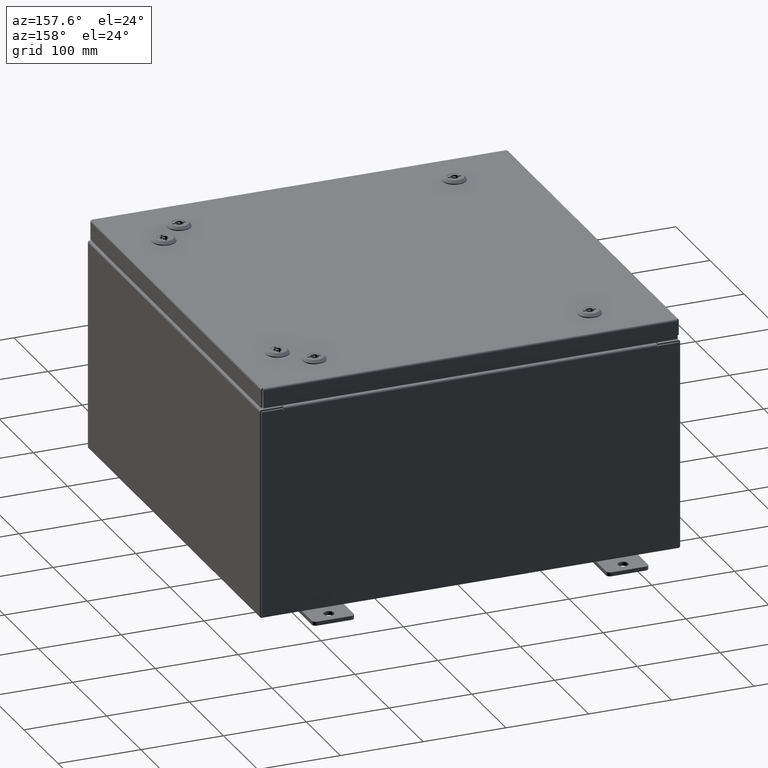
[diagram: clean part render]
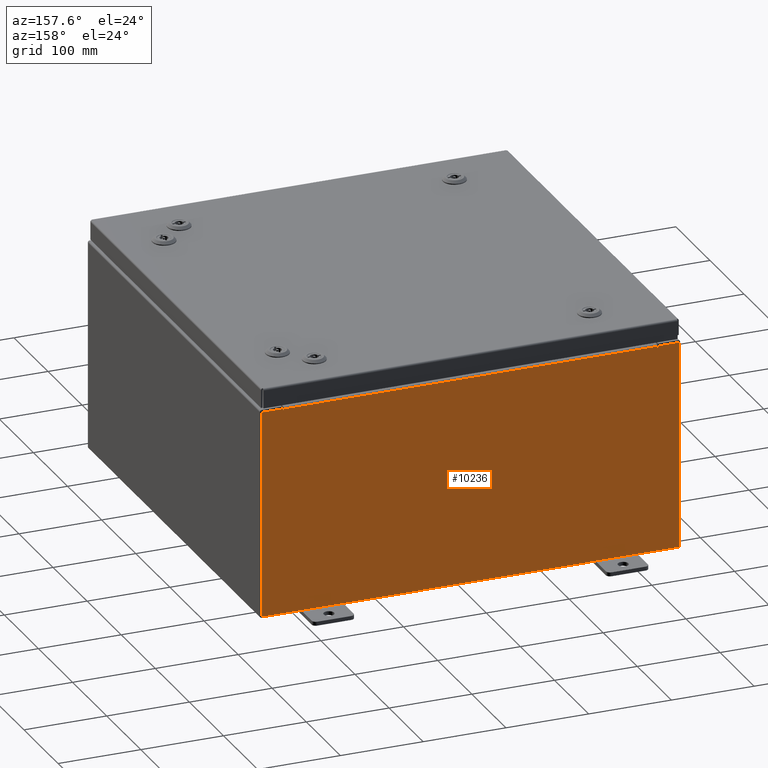
[diagram: same view with one face highlighted and labeled with its STEP entity id]
A machine part, auxiliary view. The second image highlights one B-rep face of the part: STEP entity #10236.
In plain terms, the highlighted planar face has unit normal (0, -1, 0).
Its self-contained STEP definition (entity closure, byte-faithful):
#528 = CARTESIAN_POINT ( 'NONE',  ( -9.925300000000000000, 0.0000000000000000000, -4.925300000000000000 ) ) ;
#2131 = ORIENTED_EDGE ( 'NONE', *, *, #40973, .F. ) ;
#2395 = EDGE_CURVE ( 'NONE', #14585, #35356, #20562, .T. ) ;
#3100 = LINE ( 'NONE', #52391, #53693 ) ;
#3564 = ORIENTED_EDGE ( 'NONE', *, *, #12808, .T. ) ;
#3682 = DIRECTION ( 'NONE',  ( -0.0000000000000000000, 1.000000000000000000, -0.0000000000000000000 ) ) ;
#4620 = CARTESIAN_POINT ( 'NONE',  ( -8.887200000000000000, -0.0000000000000000000, 4.874950000000000100 ) ) ;
#4625 = VECTOR ( 'NONE', #29859, 39.37007874015748100 ) ;
#5031 = ORIENTED_EDGE ( 'NONE', *, *, #24698, .T. ) ;
#5108 = CARTESIAN_POINT ( 'NONE',  ( -9.925300000000000000, 0.0000000000000000000, 4.925300000000000000 ) ) ;
#5112 = EDGE_CURVE ( 'NONE', #63272, #23173, #8918, .T. ) ;
#5375 = CARTESIAN_POINT ( 'NONE',  ( -8.924550000000000000, -0.0000000000000000000, 0.0000000000000000000 ) ) ;
#6064 = DIRECTION ( 'NONE',  ( -0.0000000000000000000, -0.0000000000000000000, 1.000000000000000000 ) ) ;
#6467 = ORIENTED_EDGE ( 'NONE', *, *, #5112, .T. ) ;
#6804 = VECTOR ( 'NONE', #13034, 39.37007874015748100 ) ;
#7138 = CARTESIAN_POINT ( 'NONE',  ( 8.887200000000000000, 0.0000000000000000000, 4.874950000000000100 ) ) ;
#7211 = VERTEX_POINT ( 'NONE', #57613 ) ;
#7795 = ORIENTED_EDGE ( 'NONE', *, *, #28725, .F. ) ;
#8028 = ORIENTED_EDGE ( 'NONE', *, *, #62526, .F. ) ;
#8489 = CARTESIAN_POINT ( 'NONE',  ( 9.925300000000000000, 0.0000000000000000000, 4.925300000000000000 ) ) ;
#8689 = LINE ( 'NONE', #49717, #60825 ) ;
#8918 = LINE ( 'NONE', #59017, #33403 ) ;
#10137 = ORIENTED_EDGE ( 'NONE', *, *, #58805, .T. ) ;
#10236 = ADVANCED_FACE ( 'NONE', ( #33969 ), #45939, .F. ) ;
#10451 = DIRECTION ( 'NONE',  ( 0.0000000000000000000, 0.0000000000000000000, -1.000000000000000000 ) ) ;
#12077 = CARTESIAN_POINT ( 'NONE',  ( 8.924549999999788600, -0.0000000000000000000, -3.873765880731794300E-013 ) ) ;
#12808 = EDGE_CURVE ( 'NONE', #16836, #63272, #8689, .T. ) ;
#13034 = DIRECTION ( 'NONE',  ( 0.0000000000000000000, 0.0000000000000000000, -1.000000000000000000 ) ) ;
#14585 = VERTEX_POINT ( 'NONE', #4620 ) ;
#15016 = VERTEX_POINT ( 'NONE', #7138 ) ;
#16060 = VECTOR ( 'NONE', #34704, 39.37007874015748100 ) ;
#16514 = EDGE_CURVE ( 'NONE', #46720, #55393, #30660, .T. ) ;
#16836 = VERTEX_POINT ( 'NONE', #8489 ) ;
#17342 = CARTESIAN_POINT ( 'NONE',  ( 8.887200000000000000, 0.0000000000000000000, 4.912300000000000100 ) ) ;
#18810 = EDGE_CURVE ( 'NONE', #46720, #14585, #19776, .T. ) ;
#19422 = VECTOR ( 'NONE', #6064, 39.37007874015748100 ) ;
#19458 = ORIENTED_EDGE ( 'NONE', *, *, #24480, .F. ) ;
#19776 = LINE ( 'NONE', #61930, #6804 ) ;
#20562 = CIRCLE ( 'NONE', #49178, 0.01867500000000003900 ) ;
#21002 = VECTOR ( 'NONE', #39364, 39.37007874015748100 ) ;
#21595 = DIRECTION ( 'NONE',  ( 0.0000000000000000000, 0.0000000000000000000, -1.000000000000000000 ) ) ;
#22499 = VECTOR ( 'NONE', #24258, 39.37007874015748100 ) ;
#23173 = VERTEX_POINT ( 'NONE', #528 ) ;
#24258 = DIRECTION ( 'NONE',  ( 0.0000000000000000000, 0.0000000000000000000, 1.000000000000000000 ) ) ;
#24480 = EDGE_CURVE ( 'NONE', #15016, #55393, #51711, .T. ) ;
#24698 = EDGE_CURVE ( 'NONE', #23173, #7211, #30912, .T. ) ;
#25939 = CARTESIAN_POINT ( 'NONE',  ( -9.925300000000000000, 0.0000000000000000000, 4.925300000000000000 ) ) ;
#26344 = DIRECTION ( 'NONE',  ( 0.0000000000000000000, -0.0000000000000000000, -1.000000000000000000 ) ) ;
#26521 = CARTESIAN_POINT ( 'NONE',  ( -8.905874999999998200, 0.0000000000000000000, 4.874950000000000100 ) ) ;
#26946 = CARTESIAN_POINT ( 'NONE',  ( 8.924550000000000000, 0.0000000000000000000, 4.925300000000000000 ) ) ;
#27156 = EDGE_CURVE ( 'NONE', #7211, #46258, #3100, .T. ) ;
#27282 = CARTESIAN_POINT ( 'NONE',  ( -8.924550000000000000, 0.0000000000000000000, 4.925300000000000000 ) ) ;
#27885 = DIRECTION ( 'NONE',  ( 1.000000000000000000, 0.0000000000000000000, 0.0000000000000000000 ) ) ;
#28301 = ORIENTED_EDGE ( 'NONE', *, *, #18810, .F. ) ;
#28725 = EDGE_CURVE ( 'NONE', #35356, #46258, #42199, .T. ) ;
#28941 = CARTESIAN_POINT ( 'NONE',  ( -8.924549999999998200, 0.0000000000000000000, 4.874950000000000100 ) ) ;
#29073 = EDGE_LOOP ( 'NONE', ( #7795, #52852, #28301, #59571, #19458, #2131, #8028, #10137, #3564, #6467, #5031, #56357 ) ) ;
#29612 = DIRECTION ( 'NONE',  ( -1.000000000000000000, -0.0000000000000000000, -0.0000000000000000000 ) ) ;
#29859 = DIRECTION ( 'NONE',  ( 1.000000000000000000, 0.0000000000000000000, 0.0000000000000000000 ) ) ;
#30583 = VERTEX_POINT ( 'NONE', #33224 ) ;
#30660 = LINE ( 'NONE', #59051, #4625 ) ;
#30912 = LINE ( 'NONE', #25939, #19422 ) ;
#31556 = VECTOR ( 'NONE', #41451, 39.37007874015748100 ) ;
#32973 = CARTESIAN_POINT ( 'NONE',  ( 8.905875000000000000, 0.0000000000000000000, 4.874950000000000100 ) ) ;
#33065 = LINE ( 'NONE', #12077, #31556 ) ;
#33224 = CARTESIAN_POINT ( 'NONE',  ( 8.924550000000000000, 0.0000000000000000000, 4.874950000000000100 ) ) ;
#33403 = VECTOR ( 'NONE', #29612, 39.37007874015748100 ) ;
#33969 = FACE_OUTER_BOUND ( 'NONE', #29073, .T. ) ;
#34704 = DIRECTION ( 'NONE',  ( 0.0000000000000000000, 0.0000000000000000000, 1.000000000000000000 ) ) ;
#35356 = VERTEX_POINT ( 'NONE', #28941 ) ;
#37930 = DIRECTION ( 'NONE',  ( 0.0000000000000000000, 0.0000000000000000000, -1.000000000000000000 ) ) ;
#39364 = DIRECTION ( 'NONE',  ( 1.000000000000000000, 0.0000000000000000000, 0.0000000000000000000 ) ) ;
#40878 = CARTESIAN_POINT ( 'NONE',  ( -8.887200000000000000, -7.171100983368691200E-016, 4.912300000000000100 ) ) ;
#40973 = EDGE_CURVE ( 'NONE', #30583, #15016, #46253, .T. ) ;
#41451 = DIRECTION ( 'NONE',  ( -4.340572780400004900E-014, 0.0000000000000000000, -1.000000000000000000 ) ) ;
#41559 = AXIS2_PLACEMENT_3D ( 'NONE', #32973, #3682, #37930 ) ;
#42199 = LINE ( 'NONE', #5375, #16060 ) ;
#45939 = PLANE ( 'NONE',  #62924 ) ;
#46253 = CIRCLE ( 'NONE', #41559, 0.01867500000000003900 ) ;
#46258 = VERTEX_POINT ( 'NONE', #27282 ) ;
#46720 = VERTEX_POINT ( 'NONE', #40878 ) ;
#47177 = LINE ( 'NONE', #5108, #21002 ) ;
#49178 = AXIS2_PLACEMENT_3D ( 'NONE', #26521, #51019, #21595 ) ;
#49717 = CARTESIAN_POINT ( 'NONE',  ( 9.925300000000000000, 0.0000000000000000000, 4.925300000000000000 ) ) ;
#50854 = CARTESIAN_POINT ( 'NONE',  ( 0.0000000000000000000, 0.0000000000000000000, 0.0000000000000000000 ) ) ;
#51019 = DIRECTION ( 'NONE',  ( -0.0000000000000000000, 1.000000000000000000, -0.0000000000000000000 ) ) ;
#51711 = LINE ( 'NONE', #58577, #22499 ) ;
#52391 = CARTESIAN_POINT ( 'NONE',  ( -9.925300000000000000, 0.0000000000000000000, 4.925300000000000000 ) ) ;
#52852 = ORIENTED_EDGE ( 'NONE', *, *, #2395, .F. ) ;
#53693 = VECTOR ( 'NONE', #27885, 39.37007874015748100 ) ;
#55393 = VERTEX_POINT ( 'NONE', #17342 ) ;
#55791 = DIRECTION ( 'NONE',  ( 0.0000000000000000000, -1.000000000000000000, 0.0000000000000000000 ) ) ;
#56357 = ORIENTED_EDGE ( 'NONE', *, *, #27156, .T. ) ;
#57613 = CARTESIAN_POINT ( 'NONE',  ( -9.925300000000000000, 0.0000000000000000000, 4.925300000000000000 ) ) ;
#58577 = CARTESIAN_POINT ( 'NONE',  ( 8.887200000000000000, 0.0000000000000000000, 0.0000000000000000000 ) ) ;
#58602 = VERTEX_POINT ( 'NONE', #26946 ) ;
#58805 = EDGE_CURVE ( 'NONE', #58602, #16836, #47177, .T. ) ;
#59017 = CARTESIAN_POINT ( 'NONE',  ( -9.925300000000000000, 0.0000000000000000000, -4.925300000000000000 ) ) ;
#59051 = CARTESIAN_POINT ( 'NONE',  ( -8.887200000000000000, -7.171100983368691200E-016, 4.912300000000000100 ) ) ;
#59571 = ORIENTED_EDGE ( 'NONE', *, *, #16514, .T. ) ;
#60348 = CARTESIAN_POINT ( 'NONE',  ( 9.925300000000000000, 0.0000000000000000000, -4.925300000000000000 ) ) ;
#60825 = VECTOR ( 'NONE', #10451, 39.37007874015748100 ) ;
#61930 = CARTESIAN_POINT ( 'NONE',  ( -8.887200000000000000, -0.0000000000000000000, 0.0000000000000000000 ) ) ;
#62526 = EDGE_CURVE ( 'NONE', #58602, #30583, #33065, .T. ) ;
#62924 = AXIS2_PLACEMENT_3D ( 'NONE', #50854, #55791, #26344 ) ;
#63272 = VERTEX_POINT ( 'NONE', #60348 ) ;